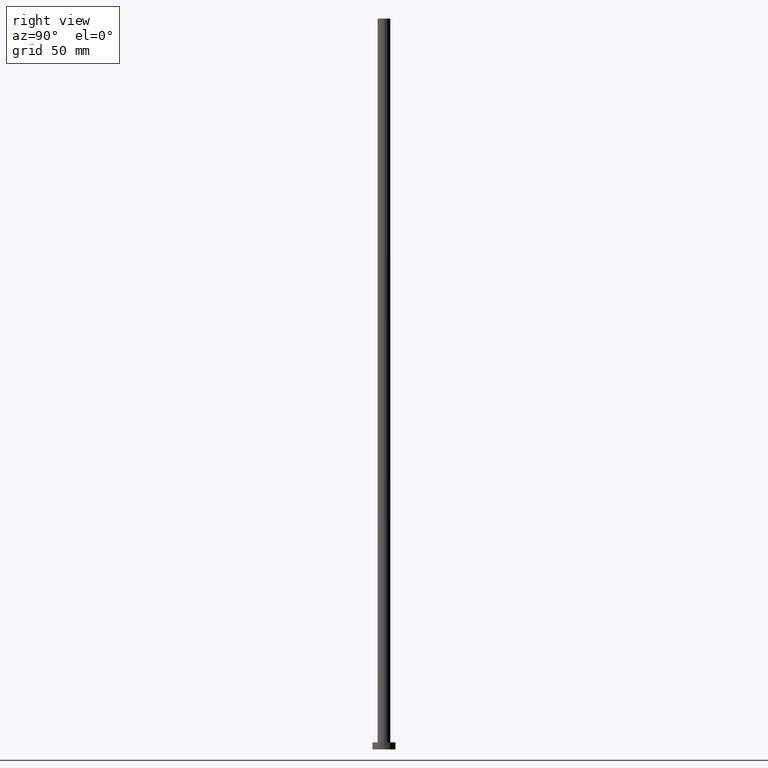
[diagram: clean part render]
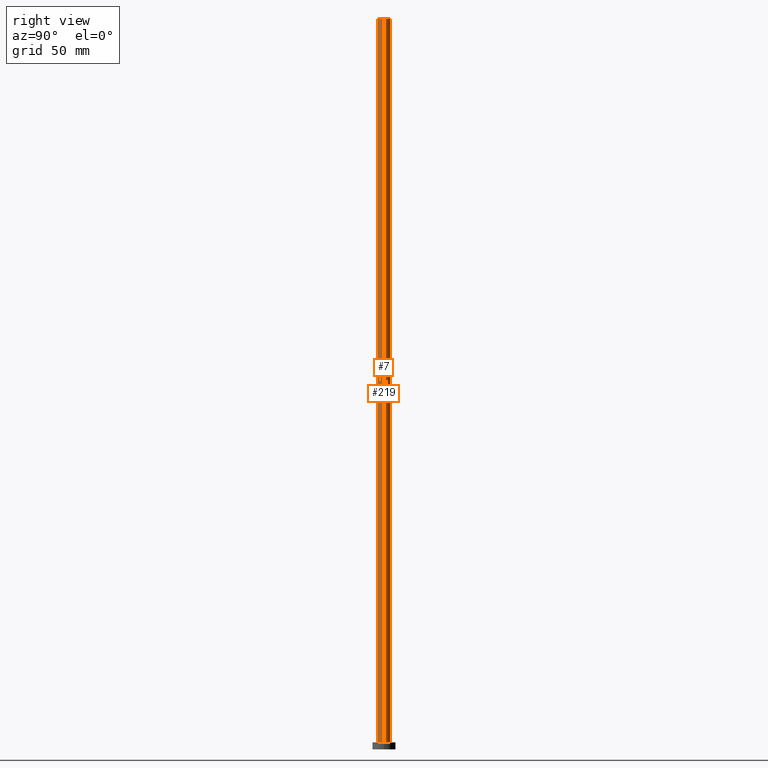
[diagram: same view with one multi-face feature highlighted, each face labeled with its STEP entity id]
A machine part, right view. The highlighted faces form ONE feature: a constant-radius fillet chain: 2 tangent blend faces with common blend radius 2.75 mm. The faces share edges in the B-rep.
Their STEP definitions:
[1] entity #7 (Cylinder):
#1 = EDGE_CURVE ( 'NONE', #143, #55, #217, .T. ) ;
#3 = CARTESIAN_POINT ( 'NONE',  ( 0.000000000000000000, 0.000000000000000000, 3.000000000000000000 ) ) ;
#7 = ADVANCED_FACE ( 'NONE', ( #97 ), #250, .T. ) ;
#8 = AXIS2_PLACEMENT_3D ( 'NONE', #3, #147, #249 ) ;
#26 = DIRECTION ( 'NONE',  ( -1.000000000000000000, 0.000000000000000000, 0.000000000000000000 ) ) ;
#28 = DIRECTION ( 'NONE',  ( -0.000000000000000000, -0.000000000000000000, -1.000000000000000000 ) ) ;
#33 = CARTESIAN_POINT ( 'NONE',  ( 2.750000000000000000, 3.367778697655221012E-16, 3.000000000000000000 ) ) ;
#39 = VECTOR ( 'NONE', #28, 1000.000000000000000 ) ;
#55 = VERTEX_POINT ( 'NONE', #162 ) ;
#58 = DIRECTION ( 'NONE',  ( -0.000000000000000000, -0.000000000000000000, -1.000000000000000000 ) ) ;
#60 = ORIENTED_EDGE ( 'NONE', *, *, #235, .T. ) ;
#61 = DIRECTION ( 'NONE',  ( 0.000000000000000000, 0.000000000000000000, 1.000000000000000000 ) ) ;
#79 = EDGE_CURVE ( 'NONE', #55, #139, #110, .T. ) ;
#97 = FACE_OUTER_BOUND ( 'NONE', #115, .T. ) ;
#100 = ORIENTED_EDGE ( 'NONE', *, *, #185, .T. ) ;
#106 = CARTESIAN_POINT ( 'NONE',  ( 2.750000000000000000, 3.367778697655221012E-16, 315.0000000000000000 ) ) ;
#110 = LINE ( 'NONE', #106, #155 ) ;
#115 = EDGE_LOOP ( 'NONE', ( #182, #120, #60, #100 ) ) ;
#116 = AXIS2_PLACEMENT_3D ( 'NONE', #156, #58, #26 ) ;
#120 = ORIENTED_EDGE ( 'NONE', *, *, #1, .F. ) ;
#123 = CIRCLE ( 'NONE', #8, 2.750000000000000000 ) ;
#127 = LINE ( 'NONE', #189, #39 ) ;
#139 = VERTEX_POINT ( 'NONE', #33 ) ;
#143 = VERTEX_POINT ( 'NONE', #144 ) ;
#144 = CARTESIAN_POINT ( 'NONE',  ( -2.750000000000000000, 0.000000000000000000, 315.0000000000000000 ) ) ;
#147 = DIRECTION ( 'NONE',  ( 0.000000000000000000, 0.000000000000000000, 1.000000000000000000 ) ) ;
#155 = VECTOR ( 'NONE', #240, 1000.000000000000000 ) ;
#156 = CARTESIAN_POINT ( 'NONE',  ( 0.000000000000000000, 0.000000000000000000, 315.0000000000000000 ) ) ;
#160 = VERTEX_POINT ( 'NONE', #202 ) ;
#162 = CARTESIAN_POINT ( 'NONE',  ( 2.750000000000000000, 3.367778697655221012E-16, 315.0000000000000000 ) ) ;
#181 = DIRECTION ( 'NONE',  ( 1.000000000000000000, 0.000000000000000000, 0.000000000000000000 ) ) ;
#182 = ORIENTED_EDGE ( 'NONE', *, *, #79, .F. ) ;
#185 = EDGE_CURVE ( 'NONE', #160, #139, #123, .T. ) ;
#189 = CARTESIAN_POINT ( 'NONE',  ( -2.750000000000000000, 0.000000000000000000, 315.0000000000000000 ) ) ;
#196 = CARTESIAN_POINT ( 'NONE',  ( 0.000000000000000000, 0.000000000000000000, 315.0000000000000000 ) ) ;
#202 = CARTESIAN_POINT ( 'NONE',  ( -2.750000000000000000, 0.000000000000000000, 3.000000000000000000 ) ) ;
#217 = CIRCLE ( 'NONE', #231, 2.750000000000000000 ) ;
#231 = AXIS2_PLACEMENT_3D ( 'NONE', #196, #61, #181 ) ;
#235 = EDGE_CURVE ( 'NONE', #143, #160, #127, .T. ) ;
#240 = DIRECTION ( 'NONE',  ( -0.000000000000000000, -0.000000000000000000, -1.000000000000000000 ) ) ;
#249 = DIRECTION ( 'NONE',  ( 1.000000000000000000, 0.000000000000000000, 0.000000000000000000 ) ) ;
#250 = CYLINDRICAL_SURFACE ( 'NONE', #116, 2.750000000000000000 ) ;
[2] entity #219 (Cylinder):
#2 = CARTESIAN_POINT ( 'NONE',  ( 0.000000000000000000, 0.000000000000000000, 3.000000000000000000 ) ) ;
#4 = AXIS2_PLACEMENT_3D ( 'NONE', #2, #221, #104 ) ;
#9 = DIRECTION ( 'NONE',  ( -1.000000000000000000, 0.000000000000000000, 0.000000000000000000 ) ) ;
#16 = CIRCLE ( 'NONE', #4, 2.750000000000000000 ) ;
#22 = DIRECTION ( 'NONE',  ( 1.000000000000000000, 0.000000000000000000, 0.000000000000000000 ) ) ;
#28 = DIRECTION ( 'NONE',  ( -0.000000000000000000, -0.000000000000000000, -1.000000000000000000 ) ) ;
#29 = CIRCLE ( 'NONE', #129, 2.750000000000000000 ) ;
#31 = DIRECTION ( 'NONE',  ( -0.000000000000000000, -0.000000000000000000, -1.000000000000000000 ) ) ;
#33 = CARTESIAN_POINT ( 'NONE',  ( 2.750000000000000000, 3.367778697655221012E-16, 3.000000000000000000 ) ) ;
#38 = EDGE_LOOP ( 'NONE', ( #232, #216, #213, #83 ) ) ;
#39 = VECTOR ( 'NONE', #28, 1000.000000000000000 ) ;
#44 = CARTESIAN_POINT ( 'NONE',  ( 0.000000000000000000, 0.000000000000000000, 315.0000000000000000 ) ) ;
#55 = VERTEX_POINT ( 'NONE', #162 ) ;
#79 = EDGE_CURVE ( 'NONE', #55, #139, #110, .T. ) ;
#83 = ORIENTED_EDGE ( 'NONE', *, *, #235, .F. ) ;
#104 = DIRECTION ( 'NONE',  ( 1.000000000000000000, 0.000000000000000000, 0.000000000000000000 ) ) ;
#106 = CARTESIAN_POINT ( 'NONE',  ( 2.750000000000000000, 3.367778697655221012E-16, 315.0000000000000000 ) ) ;
#110 = LINE ( 'NONE', #106, #155 ) ;
#124 = DIRECTION ( 'NONE',  ( 0.000000000000000000, 0.000000000000000000, 1.000000000000000000 ) ) ;
#127 = LINE ( 'NONE', #189, #39 ) ;
#129 = AXIS2_PLACEMENT_3D ( 'NONE', #44, #124, #22 ) ;
#131 = CYLINDRICAL_SURFACE ( 'NONE', #184, 2.750000000000000000 ) ;
#139 = VERTEX_POINT ( 'NONE', #33 ) ;
#143 = VERTEX_POINT ( 'NONE', #144 ) ;
#144 = CARTESIAN_POINT ( 'NONE',  ( -2.750000000000000000, 0.000000000000000000, 315.0000000000000000 ) ) ;
#155 = VECTOR ( 'NONE', #240, 1000.000000000000000 ) ;
#160 = VERTEX_POINT ( 'NONE', #202 ) ;
#161 = EDGE_CURVE ( 'NONE', #55, #143, #29, .T. ) ;
#162 = CARTESIAN_POINT ( 'NONE',  ( 2.750000000000000000, 3.367778697655221012E-16, 315.0000000000000000 ) ) ;
#175 = EDGE_CURVE ( 'NONE', #139, #160, #16, .T. ) ;
#184 = AXIS2_PLACEMENT_3D ( 'NONE', #247, #31, #9 ) ;
#189 = CARTESIAN_POINT ( 'NONE',  ( -2.750000000000000000, 0.000000000000000000, 315.0000000000000000 ) ) ;
#202 = CARTESIAN_POINT ( 'NONE',  ( -2.750000000000000000, 0.000000000000000000, 3.000000000000000000 ) ) ;
#211 = FACE_OUTER_BOUND ( 'NONE', #38, .T. ) ;
#213 = ORIENTED_EDGE ( 'NONE', *, *, #175, .T. ) ;
#216 = ORIENTED_EDGE ( 'NONE', *, *, #79, .T. ) ;
#219 = ADVANCED_FACE ( 'NONE', ( #211 ), #131, .T. ) ;
#221 = DIRECTION ( 'NONE',  ( 0.000000000000000000, 0.000000000000000000, 1.000000000000000000 ) ) ;
#232 = ORIENTED_EDGE ( 'NONE', *, *, #161, .F. ) ;
#235 = EDGE_CURVE ( 'NONE', #143, #160, #127, .T. ) ;
#240 = DIRECTION ( 'NONE',  ( -0.000000000000000000, -0.000000000000000000, -1.000000000000000000 ) ) ;
#247 = CARTESIAN_POINT ( 'NONE',  ( 0.000000000000000000, 0.000000000000000000, 315.0000000000000000 ) ) ;